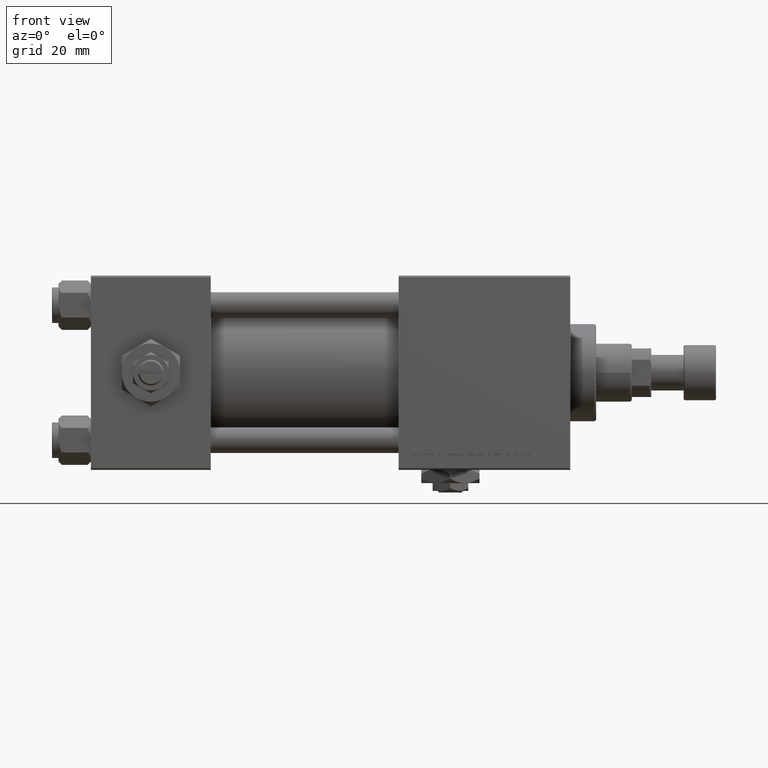
[diagram: clean part render]
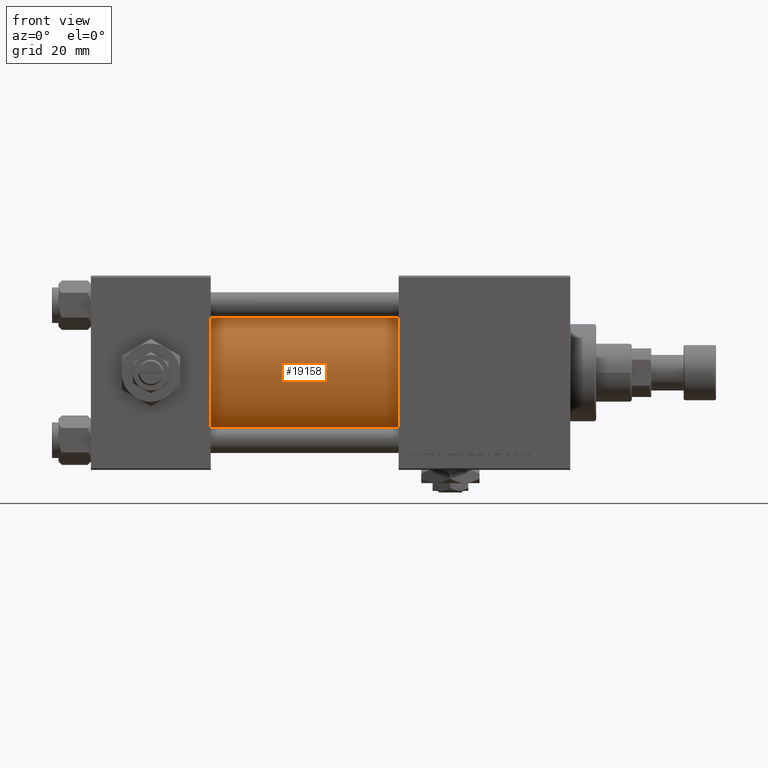
[diagram: same view with one face highlighted and labeled with its STEP entity id]
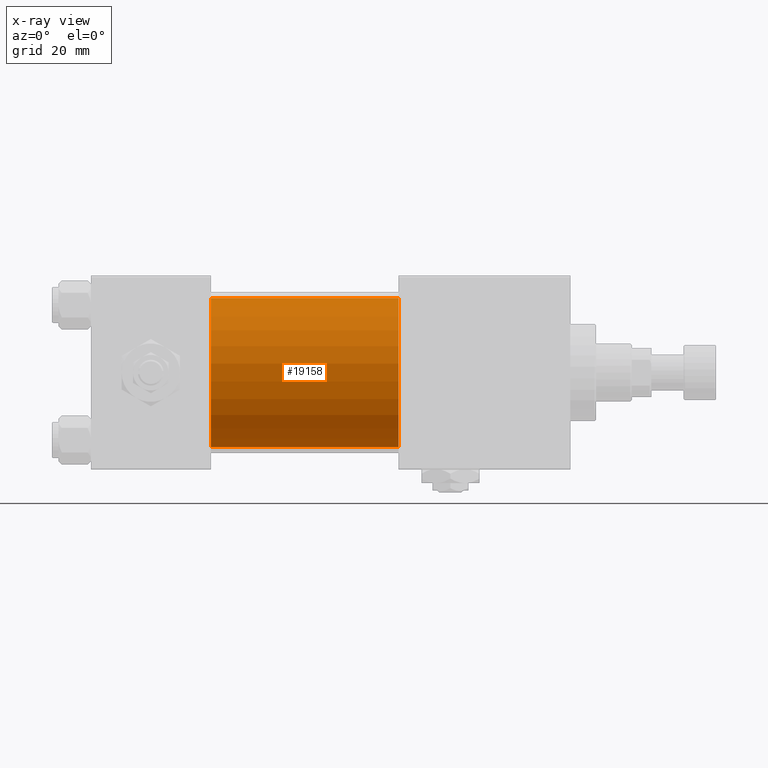
[diagram: x-ray of the same camera — body ghosted, the highlighted face saturated]
A machine part, front view. The second image highlights one B-rep face of the part: STEP entity #19158.
The next image is the same camera in x-ray: the body ghosted, the highlighted face saturated — about 0% of this face is hidden behind the body in this view.
In plain terms, the highlighted cylindrical surface (partial cylindrical patch) has radius 23 mm, axis along (-1, -0, -0).
Its self-contained STEP definition (entity closure, byte-faithful):
#648 = CARTESIAN_POINT ( 'NONE',  ( 95.00000000000000000, -2.602085213965210642E-15, 23.00000000000000000 ) ) ;
#2019 = VERTEX_POINT ( 'NONE', #2703 ) ;
#2212 = CARTESIAN_POINT ( 'NONE',  ( 95.00000000000000000, -2.602085213965210642E-15, 0.000000000000000000 ) ) ;
#2703 = CARTESIAN_POINT ( 'NONE',  ( 37.00000000000000000, -2.602085213965210642E-15, 23.00000000000000000 ) ) ;
#3536 = VERTEX_POINT ( 'NONE', #31654 ) ;
#3867 = LINE ( 'NONE', #648, #39897 ) ;
#3915 = CARTESIAN_POINT ( 'NONE',  ( 95.00000000000000000, -2.602085213965210642E-15, 0.000000000000000000 ) ) ;
#4688 = DIRECTION ( 'NONE',  ( 0.000000000000000000, 0.000000000000000000, 1.000000000000000000 ) ) ;
#6229 = DIRECTION ( 'NONE',  ( -1.000000000000000000, -0.000000000000000000, -0.000000000000000000 ) ) ;
#8692 = CARTESIAN_POINT ( 'NONE',  ( 37.00000000000000000, -2.602085213965210642E-15, 0.000000000000000000 ) ) ;
#9360 = VECTOR ( 'NONE', #6229, 1000.000000000000000 ) ;
#10544 = EDGE_CURVE ( 'NONE', #16429, #3536, #36562, .T. ) ;
#10570 = EDGE_LOOP ( 'NONE', ( #16594, #16342, #35229, #21791 ) ) ;
#11700 = EDGE_CURVE ( 'NONE', #3536, #33736, #38488, .T. ) ;
#11871 = DIRECTION ( 'NONE',  ( -1.000000000000000000, -0.000000000000000000, -0.000000000000000000 ) ) ;
#14334 = CARTESIAN_POINT ( 'NONE',  ( 37.00000000000000000, 2.146024240737012665E-16, -23.00000000000000000 ) ) ;
#16342 = ORIENTED_EDGE ( 'NONE', *, *, #10544, .F. ) ;
#16429 = VERTEX_POINT ( 'NONE', #41169 ) ;
#16594 = ORIENTED_EDGE ( 'NONE', *, *, #11700, .F. ) ;
#18211 = AXIS2_PLACEMENT_3D ( 'NONE', #8692, #24964, #4688 ) ;
#19158 = ADVANCED_FACE ( 'NONE', ( #33977 ), #50260, .T. ) ;
#21791 = ORIENTED_EDGE ( 'NONE', *, *, #23831, .T. ) ;
#23831 = EDGE_CURVE ( 'NONE', #2019, #33736, #46306, .T. ) ;
#24964 = DIRECTION ( 'NONE',  ( 1.000000000000000000, -0.000000000000000000, 0.000000000000000000 ) ) ;
#27188 = AXIS2_PLACEMENT_3D ( 'NONE', #3915, #47930, #52733 ) ;
#30772 = AXIS2_PLACEMENT_3D ( 'NONE', #2212, #46505, #45735 ) ;
#31654 = CARTESIAN_POINT ( 'NONE',  ( 95.00000000000000000, 2.146024240737012665E-16, -23.00000000000000000 ) ) ;
#33736 = VERTEX_POINT ( 'NONE', #14334 ) ;
#33977 = FACE_OUTER_BOUND ( 'NONE', #10570, .T. ) ;
#35229 = ORIENTED_EDGE ( 'NONE', *, *, #47568, .T. ) ;
#36562 = CIRCLE ( 'NONE', #27188, 23.00000000000000000 ) ;
#38488 = LINE ( 'NONE', #42761, #9360 ) ;
#39897 = VECTOR ( 'NONE', #11871, 1000.000000000000000 ) ;
#41169 = CARTESIAN_POINT ( 'NONE',  ( 95.00000000000000000, -2.602085213965210642E-15, 23.00000000000000000 ) ) ;
#42761 = CARTESIAN_POINT ( 'NONE',  ( 95.00000000000000000, 2.146024240737012665E-16, -23.00000000000000000 ) ) ;
#45735 = DIRECTION ( 'NONE',  ( 0.000000000000000000, 0.000000000000000000, 1.000000000000000000 ) ) ;
#46306 = CIRCLE ( 'NONE', #18211, 23.00000000000000000 ) ;
#46505 = DIRECTION ( 'NONE',  ( -1.000000000000000000, -0.000000000000000000, -0.000000000000000000 ) ) ;
#47568 = EDGE_CURVE ( 'NONE', #16429, #2019, #3867, .T. ) ;
#47930 = DIRECTION ( 'NONE',  ( 1.000000000000000000, 0.000000000000000000, 0.000000000000000000 ) ) ;
#50260 = CYLINDRICAL_SURFACE ( 'NONE', #30772, 23.00000000000000000 ) ;
#52733 = DIRECTION ( 'NONE',  ( 0.000000000000000000, 0.000000000000000000, -1.000000000000000000 ) ) ;